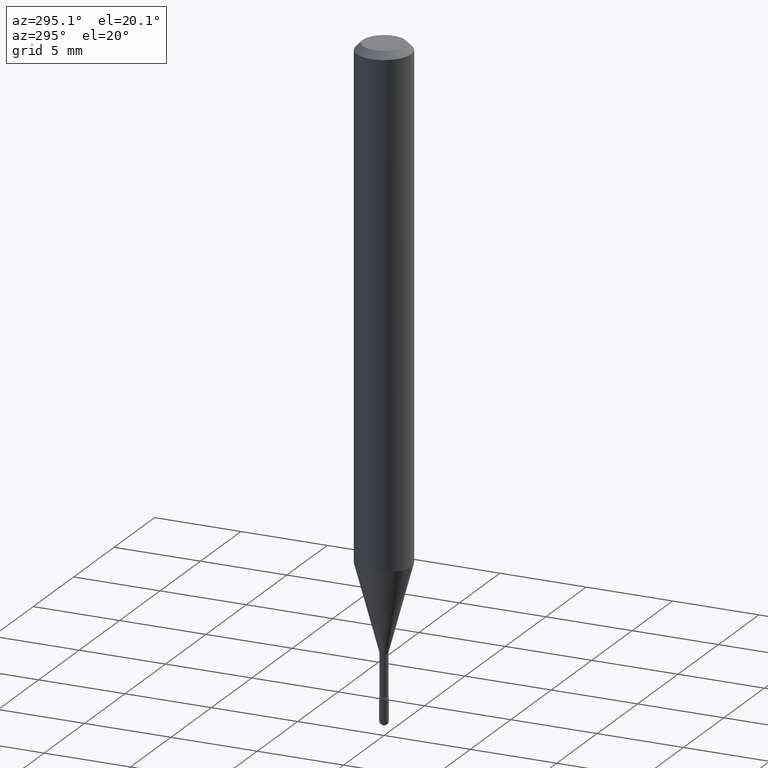
[diagram: clean part render]
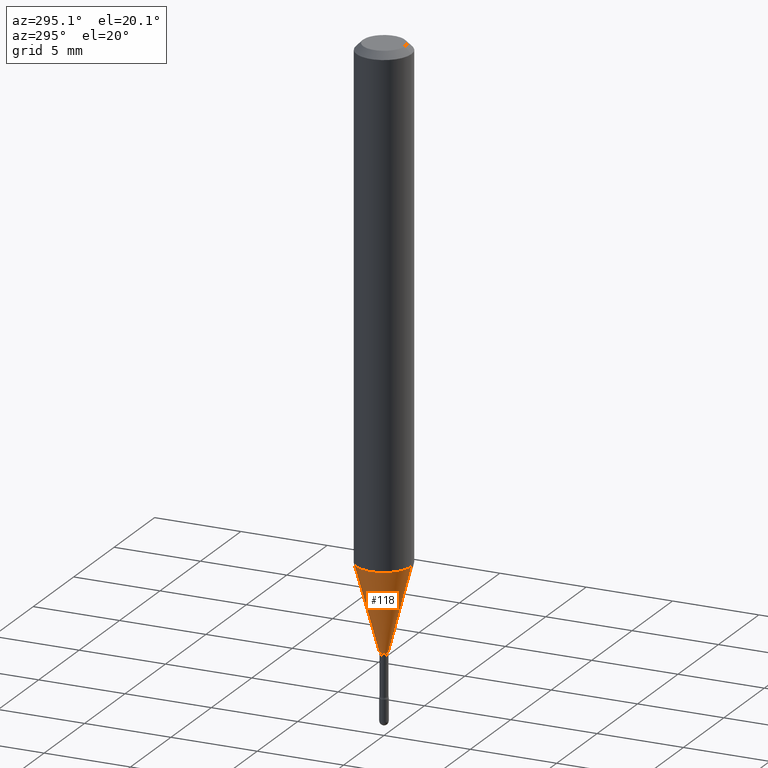
[diagram: same view with one face highlighted and labeled with its STEP entity id]
A machine part, auxiliary view. The second image highlights one B-rep face of the part: STEP entity #118.
In plain terms, the highlighted conical surface has half-angle 15 deg.
Its self-contained STEP definition (entity closure, byte-faithful):
#26 = EDGE_CURVE ( 'NONE', #217, #350, #147, .T. ) ;
#37 = CARTESIAN_POINT ( 'NONE',  ( 2.572559502513361655E-16, 0.009911112605659307129, -1.338092501787273347 ) ) ;
#38 = ORIENTED_EDGE ( 'NONE', *, *, #130, .T. ) ;
#79 = CARTESIAN_POINT ( 'NONE',  ( -4.364351673553637142E-16, -0.06250000000000398293, -1.141828102118092936 ) ) ;
#83 = FACE_OUTER_BOUND ( 'NONE', #338, .T. ) ;
#94 = VERTEX_POINT ( 'NONE', #169 ) ;
#118 = ADVANCED_FACE ( 'NONE', ( #83 ), #448, .T. ) ;
#130 = EDGE_CURVE ( 'NONE', #258, #217, #399, .T. ) ;
#147 = LINE ( 'NONE', #278, #354 ) ;
#169 = CARTESIAN_POINT ( 'NONE',  ( 4.440892098500903249E-16, 0.06249999999999600320, -1.141828102118093602 ) ) ;
#217 = VERTEX_POINT ( 'NONE', #356 ) ;
#256 = DIRECTION ( 'NONE',  ( -6.982962677686265922E-15, -1.000000000000000000, 0.000000000000000000 ) ) ;
#258 = VERTEX_POINT ( 'NONE', #37 ) ;
#278 = CARTESIAN_POINT ( 'NONE',  ( -6.920892941966471525E-17, -0.009911112605668652084, -1.338092501787273347 ) ) ;
#281 = CIRCLE ( 'NONE', #296, 0.06250000000000000000 ) ;
#288 = DIRECTION ( 'NONE',  ( -2.445472610723861690E-29, 3.491475890527150421E-15, 1.000000000000000000 ) ) ;
#293 = DIRECTION ( 'NONE',  ( -2.445472610723861690E-29, 3.491475890527150421E-15, 1.000000000000000000 ) ) ;
#295 = LINE ( 'NONE', #517, #365 ) ;
#296 = AXIS2_PLACEMENT_3D ( 'NONE', #476, #288, #422 ) ;
#308 = ORIENTED_EDGE ( 'NONE', *, *, #330, .F. ) ;
#325 = DIRECTION ( 'NONE',  ( 1.839019923739598738E-15, 0.2588190451025247363, 0.9659258262890673130 ) ) ;
#326 = AXIS2_PLACEMENT_3D ( 'NONE', #437, #353, #256 ) ;
#330 = EDGE_CURVE ( 'NONE', #258, #94, #295, .T. ) ;
#338 = EDGE_LOOP ( 'NONE', ( #308, #38, #423, #430 ) ) ;
#343 = EDGE_CURVE ( 'NONE', #94, #350, #281, .T. ) ;
#348 = DIRECTION ( 'NONE',  ( -6.982962677686265922E-15, -1.000000000000000000, 0.000000000000000000 ) ) ;
#350 = VERTEX_POINT ( 'NONE', #79 ) ;
#353 = DIRECTION ( 'NONE',  ( -2.445472610723861690E-29, 3.491475890527150421E-15, 1.000000000000000000 ) ) ;
#354 = VECTOR ( 'NONE', #360, 39.37007874015748854 ) ;
#356 = CARTESIAN_POINT ( 'NONE',  ( -6.920892941966471525E-17, -0.009911112605668652084, -1.338092501787273347 ) ) ;
#360 = DIRECTION ( 'NONE',  ( -1.807323732225328562E-15, -0.2588190451025179639, 0.9659258262890690894 ) ) ;
#365 = VECTOR ( 'NONE', #325, 39.37007874015748854 ) ;
#399 = CIRCLE ( 'NONE', #462, 0.009911112605663978739 ) ;
#422 = DIRECTION ( 'NONE',  ( -6.982962677686265922E-15, -1.000000000000000000, 4.370956789862821150E-15 ) ) ;
#423 = ORIENTED_EDGE ( 'NONE', *, *, #26, .T. ) ;
#430 = ORIENTED_EDGE ( 'NONE', *, *, #343, .F. ) ;
#432 = CARTESIAN_POINT ( 'NONE',  ( 3.272268563735746629E-29, -4.671917709285422195E-15, -1.338092501787273347 ) ) ;
#437 = CARTESIAN_POINT ( 'NONE',  ( 3.272268563735746629E-29, -4.671917709285422195E-15, -1.338092501787273347 ) ) ;
#448 = CONICAL_SURFACE ( 'NONE', #326, 0.009911112605663978739, 0.2617993877991500740 ) ;
#462 = AXIS2_PLACEMENT_3D ( 'NONE', #432, #293, #348 ) ;
#476 = CARTESIAN_POINT ( 'NONE',  ( 2.792309349884605750E-29, -3.986665289671695629E-15, -1.141828102118093380 ) ) ;
#517 = CARTESIAN_POINT ( 'NONE',  ( 7.042269065258169786E-17, 0.009911112605659307129, -1.338092501787273347 ) ) ;